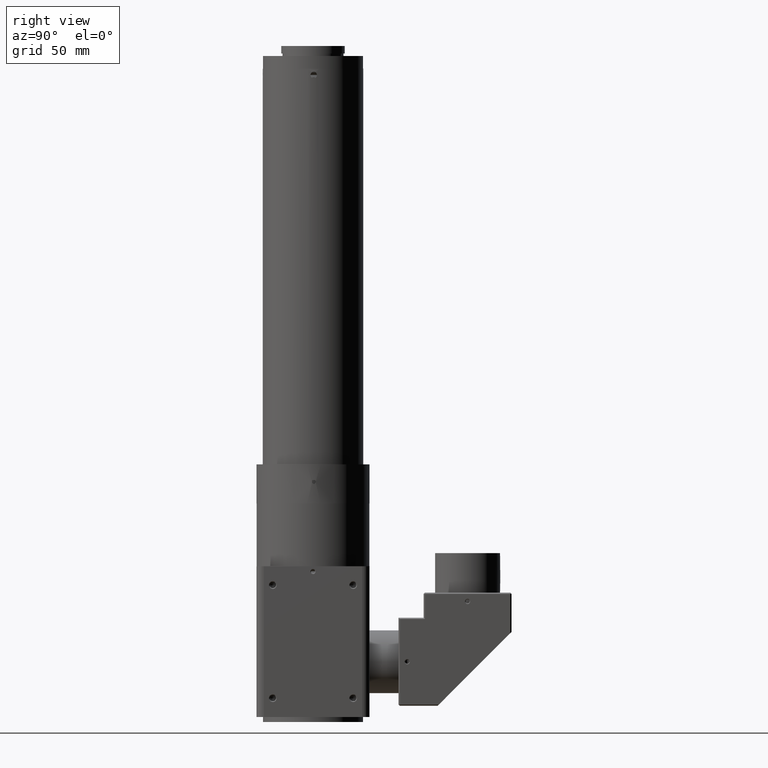
[diagram: clean part render]
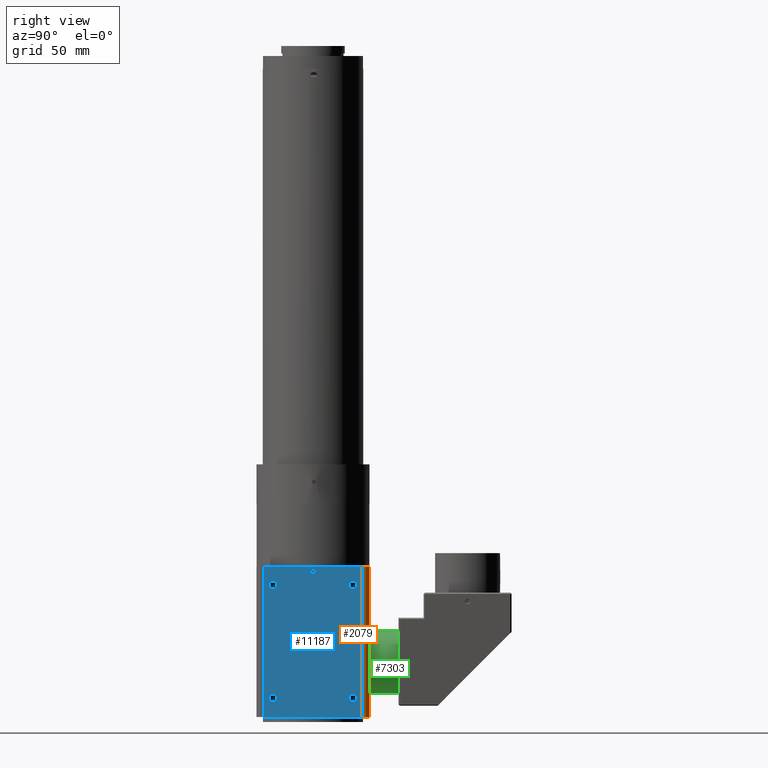
[diagram: same view with three faces highlighted in distinct colors, each labeled with its STEP entity id]
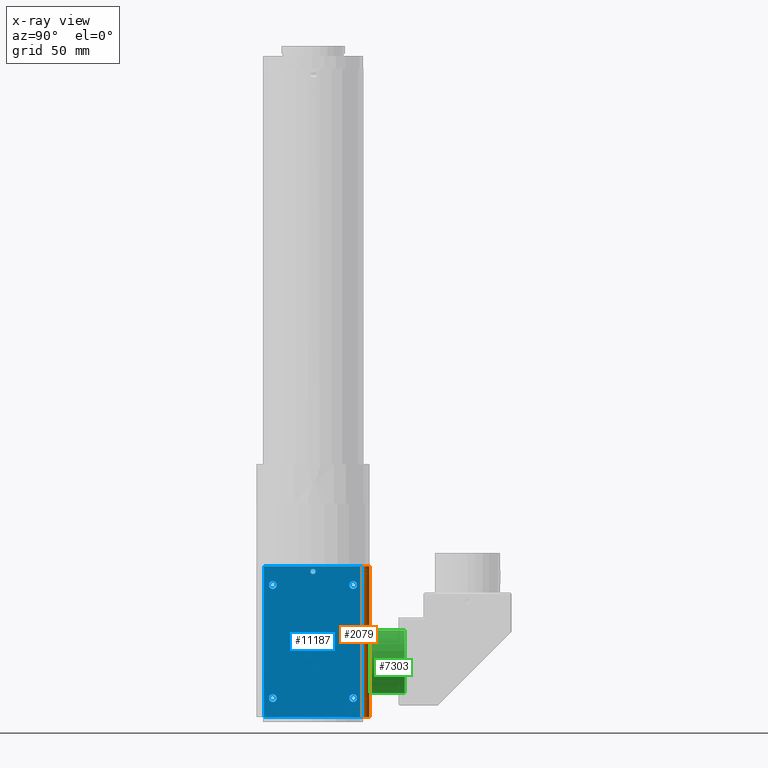
[diagram: x-ray of the same camera — body ghosted, the three highlighted faces saturated]
A machine part, right view with three faces highlighted in distinct colors.
The next image is the same camera in x-ray (body ghosted, the three faces saturated) — at least one of them is partly hidden behind the body in this view.
Their STEP definitions:

[orange] entity #2079 — the highlighted cylindrical surface (edge-blend (fillet) strip) has radius 3 mm, axis along (0, 0, -1).
#615 = CARTESIAN_POINT ( 'NONE',  ( 19.49999999999998579, 19.50000000000000355, 0.000000000000000000 ) ) ;
#764 = AXIS2_PLACEMENT_3D ( 'NONE', #615, #11208, #2173 ) ;
#855 = ORIENTED_EDGE ( 'NONE', *, *, #2610, .T. ) ;
#2079 = ADVANCED_FACE ( 'NONE', ( #3245 ), #6740, .T. ) ;
#2162 = EDGE_CURVE ( 'NONE', #8940, #2592, #11131, .T. ) ;
#2173 = DIRECTION ( 'NONE',  ( -1.000000000000000000, 1.156482317317871725E-15, 0.000000000000000000 ) ) ;
#2208 = VERTEX_POINT ( 'NONE', #6714 ) ;
#2592 = VERTEX_POINT ( 'NONE', #10692 ) ;
#2610 = EDGE_CURVE ( 'NONE', #7613, #2592, #7106, .T. ) ;
#2831 = DIRECTION ( 'NONE',  ( -0.000000000000000000, -0.000000000000000000, 1.000000000000000000 ) ) ;
#2977 = AXIS2_PLACEMENT_3D ( 'NONE', #9394, #7288, #7234 ) ;
#3016 = CARTESIAN_POINT ( 'NONE',  ( 19.49999999999997868, 22.50000000000000355, 0.000000000000000000 ) ) ;
#3245 = FACE_OUTER_BOUND ( 'NONE', #8731, .T. ) ;
#3722 = CIRCLE ( 'NONE', #764, 2.999999999999999112 ) ;
#3798 = DIRECTION ( 'NONE',  ( -1.000000000000000000, 1.156482317317871725E-15, 0.000000000000000000 ) ) ;
#4653 = AXIS2_PLACEMENT_3D ( 'NONE', #5218, #2831, #3798 ) ;
#4826 = DIRECTION ( 'NONE',  ( -0.000000000000000000, -0.000000000000000000, -1.000000000000000000 ) ) ;
#4885 = EDGE_CURVE ( 'NONE', #8940, #2208, #5694, .T. ) ;
#5168 = VECTOR ( 'NONE', #4826, 1000.000000000000000 ) ;
#5218 = CARTESIAN_POINT ( 'NONE',  ( 19.49999999999998579, 19.50000000000000355, 60.00000000000000000 ) ) ;
#5694 = LINE ( 'NONE', #6691, #5168 ) ;
#6202 = CARTESIAN_POINT ( 'NONE',  ( 22.50000000000000000, 19.50000000000000355, 60.00000000000000000 ) ) ;
#6691 = CARTESIAN_POINT ( 'NONE',  ( 22.49999999999999645, 19.50000000000000355, 60.00000000000000000 ) ) ;
#6714 = CARTESIAN_POINT ( 'NONE',  ( 22.50000000000000000, 19.50000000000000355, 0.000000000000000000 ) ) ;
#6740 = CYLINDRICAL_SURFACE ( 'NONE', #2977, 2.999999999999999112 ) ;
#6760 = ORIENTED_EDGE ( 'NONE', *, *, #2162, .F. ) ;
#7106 = LINE ( 'NONE', #8827, #8846 ) ;
#7234 = DIRECTION ( 'NONE',  ( -1.000000000000000000, 0.000000000000000000, 0.000000000000000000 ) ) ;
#7288 = DIRECTION ( 'NONE',  ( 0.000000000000000000, 0.000000000000000000, -1.000000000000000000 ) ) ;
#7613 = VERTEX_POINT ( 'NONE', #3016 ) ;
#7677 = ORIENTED_EDGE ( 'NONE', *, *, #4885, .T. ) ;
#8431 = EDGE_CURVE ( 'NONE', #2208, #7613, #3722, .T. ) ;
#8731 = EDGE_LOOP ( 'NONE', ( #9476, #855, #6760, #7677 ) ) ;
#8827 = CARTESIAN_POINT ( 'NONE',  ( 19.49999999999997158, 22.50000000000000355, 60.00000000000000000 ) ) ;
#8846 = VECTOR ( 'NONE', #10861, 1000.000000000000000 ) ;
#8940 = VERTEX_POINT ( 'NONE', #6202 ) ;
#9394 = CARTESIAN_POINT ( 'NONE',  ( 19.49999999999998579, 19.50000000000000355, 60.00000000000000000 ) ) ;
#9476 = ORIENTED_EDGE ( 'NONE', *, *, #8431, .T. ) ;
#10692 = CARTESIAN_POINT ( 'NONE',  ( 19.49999999999997868, 22.50000000000000355, 60.00000000000000000 ) ) ;
#10861 = DIRECTION ( 'NONE',  ( -0.000000000000000000, 0.000000000000000000, 1.000000000000000000 ) ) ;
#11131 = CIRCLE ( 'NONE', #4653, 2.999999999999999112 ) ;
#11208 = DIRECTION ( 'NONE',  ( -0.000000000000000000, -0.000000000000000000, 1.000000000000000000 ) ) ;

[blue] entity #11187 — the highlighted planar face has unit normal (-1, -0, 0).
#167 = DIRECTION ( 'NONE',  ( 1.000000000000000000, -0.000000000000000000, 0.000000000000000000 ) ) ;
#293 = ORIENTED_EDGE ( 'NONE', *, *, #10709, .F. ) ;
#356 = EDGE_CURVE ( 'NONE', #7692, #2208, #3054, .T. ) ;
#414 = DIRECTION ( 'NONE',  ( 1.000000000000000000, -0.000000000000000000, 0.000000000000000000 ) ) ;
#448 = ORIENTED_EDGE ( 'NONE', *, *, #10848, .F. ) ;
#583 = AXIS2_PLACEMENT_3D ( 'NONE', #10083, #4029, #8384 ) ;
#645 = EDGE_CURVE ( 'NONE', #9228, #9228, #736, .T. ) ;
#736 = CIRCLE ( 'NONE', #3317, 1.024999999970077624 ) ;
#1237 = FACE_BOUND ( 'NONE', #8778, .T. ) ;
#1361 = FACE_BOUND ( 'NONE', #2805, .T. ) ;
#1517 = CIRCLE ( 'NONE', #10593, 1.525000000015097612 ) ;
#1527 = EDGE_CURVE ( 'NONE', #7692, #6865, #3580, .T. ) ;
#1596 = LINE ( 'NONE', #8673, #2802 ) ;
#1713 = VERTEX_POINT ( 'NONE', #3389 ) ;
#1966 = ORIENTED_EDGE ( 'NONE', *, *, #645, .F. ) ;
#2091 = ORIENTED_EDGE ( 'NONE', *, *, #6651, .F. ) ;
#2104 = ORIENTED_EDGE ( 'NONE', *, *, #8227, .F. ) ;
#2122 = EDGE_LOOP ( 'NONE', ( #11121, #6068, #7463, #2104 ) ) ;
#2208 = VERTEX_POINT ( 'NONE', #6714 ) ;
#2235 = FACE_BOUND ( 'NONE', #6266, .T. ) ;
#2241 = EDGE_LOOP ( 'NONE', ( #2091 ) ) ;
#2283 = CARTESIAN_POINT ( 'NONE',  ( 22.49999999994051691, 1.024999999970156228, 57.89999999999999858 ) ) ;
#2293 = FACE_OUTER_BOUND ( 'NONE', #2122, .T. ) ;
#2357 = DIRECTION ( 'NONE',  ( 1.000000000000000000, 0.000000000000000000, 0.000000000000000000 ) ) ;
#2531 = DIRECTION ( 'NONE',  ( 0.000000000000000000, 1.000000000000000000, -0.000000000000000000 ) ) ;
#2673 = CARTESIAN_POINT ( 'NONE',  ( 22.49999999997272226, 15.99999999999998934, 7.499999999999992895 ) ) ;
#2802 = VECTOR ( 'NONE', #2531, 1000.000000000000000 ) ;
#2805 = EDGE_LOOP ( 'NONE', ( #293 ) ) ;
#3038 = DIRECTION ( 'NONE',  ( -1.000000000000000000, -1.541976423090495387E-16, 0.000000000000000000 ) ) ;
#3054 = LINE ( 'NONE', #4973, #9425 ) ;
#3317 = AXIS2_PLACEMENT_3D ( 'NONE', #9902, #9079, #10648 ) ;
#3389 = CARTESIAN_POINT ( 'NONE',  ( 22.49999999998863842, 15.99999999999998934, 50.97499999998489528 ) ) ;
#3580 = LINE ( 'NONE', #5326, #3709 ) ;
#3628 = DIRECTION ( 'NONE',  ( 0.000000000000000000, 0.000000000000000000, -1.000000000000000000 ) ) ;
#3709 = VECTOR ( 'NONE', #10442, 1000.000000000000000 ) ;
#3711 = DIRECTION ( 'NONE',  ( 0.000000000000000000, 0.000000000000000000, -1.000000000000000000 ) ) ;
#3843 = FACE_BOUND ( 'NONE', #2241, .T. ) ;
#4029 = DIRECTION ( 'NONE',  ( 1.000000000000000000, -0.000000000000000000, 0.000000000000000000 ) ) ;
#4220 = VERTEX_POINT ( 'NONE', #5149 ) ;
#4826 = DIRECTION ( 'NONE',  ( -0.000000000000000000, -0.000000000000000000, -1.000000000000000000 ) ) ;
#4885 = EDGE_CURVE ( 'NONE', #8940, #2208, #5694, .T. ) ;
#4973 = CARTESIAN_POINT ( 'NONE',  ( 22.50000000000000355, 0.000000000000000000, 0.000000000000000000 ) ) ;
#5011 = AXIS2_PLACEMENT_3D ( 'NONE', #10304, #2357, #5896 ) ;
#5149 = CARTESIAN_POINT ( 'NONE',  ( 22.49999999998863487, -16.00000000000001066, 50.97499999998490239 ) ) ;
#5168 = VECTOR ( 'NONE', #4826, 1000.000000000000000 ) ;
#5326 = CARTESIAN_POINT ( 'NONE',  ( 22.50000000000000355, -19.49999999999997158, 60.00000000000000000 ) ) ;
#5367 = AXIS2_PLACEMENT_3D ( 'NONE', #7176, #167, #3628 ) ;
#5417 = EDGE_LOOP ( 'NONE', ( #448 ) ) ;
#5542 = ORIENTED_EDGE ( 'NONE', *, *, #7500, .F. ) ;
#5694 = LINE ( 'NONE', #6691, #5168 ) ;
#5896 = DIRECTION ( 'NONE',  ( 0.000000000000000000, 0.000000000000000000, -1.000000000000000000 ) ) ;
#6068 = ORIENTED_EDGE ( 'NONE', *, *, #356, .T. ) ;
#6202 = CARTESIAN_POINT ( 'NONE',  ( 22.50000000000000000, 19.50000000000000355, 60.00000000000000000 ) ) ;
#6266 = EDGE_LOOP ( 'NONE', ( #5542 ) ) ;
#6376 = CARTESIAN_POINT ( 'NONE',  ( 22.49999999997272226, 15.99999999999998934, 5.974999999984895283 ) ) ;
#6488 = CIRCLE ( 'NONE', #5011, 1.524999999958253305 ) ;
#6596 = DIRECTION ( 'NONE',  ( 0.000000000000000000, 1.000000000000000000, -0.000000000000000000 ) ) ;
#6651 = EDGE_CURVE ( 'NONE', #4220, #4220, #7969, .T. ) ;
#6691 = CARTESIAN_POINT ( 'NONE',  ( 22.49999999999999645, 19.50000000000000355, 60.00000000000000000 ) ) ;
#6714 = CARTESIAN_POINT ( 'NONE',  ( 22.50000000000000000, 19.50000000000000355, 0.000000000000000000 ) ) ;
#6865 = VERTEX_POINT ( 'NONE', #10015 ) ;
#7043 = VERTEX_POINT ( 'NONE', #10584 ) ;
#7063 = AXIS2_PLACEMENT_3D ( 'NONE', #7390, #3038, #9415 ) ;
#7176 = CARTESIAN_POINT ( 'NONE',  ( 22.49999999998863842, 15.99999999999998934, 52.49999999999999289 ) ) ;
#7390 = CARTESIAN_POINT ( 'NONE',  ( 22.49999999999999645, 22.50000000000000355, 60.00000000000000000 ) ) ;
#7463 = ORIENTED_EDGE ( 'NONE', *, *, #4885, .F. ) ;
#7500 = EDGE_CURVE ( 'NONE', #9863, #9863, #1517, .T. ) ;
#7692 = VERTEX_POINT ( 'NONE', #7755 ) ;
#7755 = CARTESIAN_POINT ( 'NONE',  ( 22.50000000000000355, -19.49999999999997868, 0.000000000000000000 ) ) ;
#7969 = CIRCLE ( 'NONE', #583, 1.525000000015097612 ) ;
#8227 = EDGE_CURVE ( 'NONE', #6865, #8940, #1596, .T. ) ;
#8384 = DIRECTION ( 'NONE',  ( 0.000000000000000000, 0.000000000000000000, -1.000000000000000000 ) ) ;
#8673 = CARTESIAN_POINT ( 'NONE',  ( 22.50000000000000355, 0.000000000000000000, 60.00000000000000000 ) ) ;
#8778 = EDGE_LOOP ( 'NONE', ( #1966 ) ) ;
#8876 = CIRCLE ( 'NONE', #5367, 1.525000000015097612 ) ;
#8940 = VERTEX_POINT ( 'NONE', #6202 ) ;
#9079 = DIRECTION ( 'NONE',  ( 1.000000000000000000, 3.384826294558857638E-15, -0.000000000000000000 ) ) ;
#9228 = VERTEX_POINT ( 'NONE', #2283 ) ;
#9415 = DIRECTION ( 'NONE',  ( 1.541976423090495387E-16, -1.000000000000000000, 0.000000000000000000 ) ) ;
#9425 = VECTOR ( 'NONE', #6596, 1000.000000000000000 ) ;
#9863 = VERTEX_POINT ( 'NONE', #6376 ) ;
#9902 = CARTESIAN_POINT ( 'NONE',  ( 22.49999999994052047, 7.855833012376698069E-14, 57.89999999999999858 ) ) ;
#10015 = CARTESIAN_POINT ( 'NONE',  ( 22.50000000000000355, -19.49999999999997868, 60.00000000000000000 ) ) ;
#10069 = FACE_BOUND ( 'NONE', #5417, .T. ) ;
#10083 = CARTESIAN_POINT ( 'NONE',  ( 22.49999999998863487, -16.00000000000001066, 52.50000000000000000 ) ) ;
#10118 = PLANE ( 'NONE',  #7063 ) ;
#10304 = CARTESIAN_POINT ( 'NONE',  ( 22.49999999997271516, -16.00000000000001066, 7.499999999999997335 ) ) ;
#10442 = DIRECTION ( 'NONE',  ( 0.000000000000000000, 0.000000000000000000, 1.000000000000000000 ) ) ;
#10584 = CARTESIAN_POINT ( 'NONE',  ( 22.49999999997271516, -16.00000000000001066, 5.975000000041744030 ) ) ;
#10593 = AXIS2_PLACEMENT_3D ( 'NONE', #2673, #414, #3711 ) ;
#10648 = DIRECTION ( 'NONE',  ( -3.384826294687703473E-15, 1.000000000000000000, 0.000000000000000000 ) ) ;
#10709 = EDGE_CURVE ( 'NONE', #1713, #1713, #8876, .T. ) ;
#10848 = EDGE_CURVE ( 'NONE', #7043, #7043, #6488, .T. ) ;
#11121 = ORIENTED_EDGE ( 'NONE', *, *, #1527, .F. ) ;
#11187 = ADVANCED_FACE ( 'NONE', ( #2293, #1237, #1361, #10069, #2235, #3843 ), #10118, .F. ) ;

[green] entity #7303 — the highlighted cylindrical surface (bore or boss wall) has radius 12.5 mm, axis along (0, -1, 0).
#32 = CARTESIAN_POINT ( 'NONE',  ( -2.780404838475175389, 22.50000000000000711, 34.18685147748112740 ) ) ;
#203 = AXIS2_PLACEMENT_3D ( 'NONE', #11112, #571, #10132 ) ;
#480 = DIRECTION ( 'NONE',  ( -0.2224323870780139101, 0.000000000000000000, 0.9749481181984898104 ) ) ;
#571 = DIRECTION ( 'NONE',  ( -5.843577593930983453E-18, 1.000000000000000000, -1.333200084221340135E-18 ) ) ;
#651 = FACE_OUTER_BOUND ( 'NONE', #11173, .T. ) ;
#952 = CIRCLE ( 'NONE', #1880, 12.50000000000000711 ) ;
#1880 = AXIS2_PLACEMENT_3D ( 'NONE', #8555, #7050, #6126 ) ;
#2526 = EDGE_CURVE ( 'NONE', #10334, #10334, #952, .T. ) ;
#2786 = ORIENTED_EDGE ( 'NONE', *, *, #2526, .T. ) ;
#4886 = CYLINDRICAL_SURFACE ( 'NONE', #5009, 12.50000000000000711 ) ;
#5009 = AXIS2_PLACEMENT_3D ( 'NONE', #6793, #8411, #480 ) ;
#5165 = CARTESIAN_POINT ( 'NONE',  ( -2.780404838475175389, 36.50000000000002132, 34.18685147748112740 ) ) ;
#6117 = VERTEX_POINT ( 'NONE', #32 ) ;
#6126 = DIRECTION ( 'NONE',  ( -0.2224323870780139101, 0.000000000000000000, 0.9749481181984898104 ) ) ;
#6277 = EDGE_LOOP ( 'NONE', ( #10433 ) ) ;
#6685 = CIRCLE ( 'NONE', #203, 12.50000000000000711 ) ;
#6744 = FACE_OUTER_BOUND ( 'NONE', #6277, .T. ) ;
#6793 = CARTESIAN_POINT ( 'NONE',  ( 2.518308857583952255E-16, -1.572007956103696369, 22.00000000000000000 ) ) ;
#7050 = DIRECTION ( 'NONE',  ( 5.843577593930983453E-18, -1.000000000000000000, 1.333200084221340135E-18 ) ) ;
#7303 = ADVANCED_FACE ( 'NONE', ( #6744, #651 ), #4886, .T. ) ;
#8411 = DIRECTION ( 'NONE',  ( 5.843577593930983453E-18, -1.000000000000000000, 1.333200084221340135E-18 ) ) ;
#8555 = CARTESIAN_POINT ( 'NONE',  ( 2.935415311014537603E-17, 36.50000000000002132, 22.00000000000000000 ) ) ;
#10132 = DIRECTION ( 'NONE',  ( -0.2224323870780139101, 0.000000000000000000, 0.9749481181984898104 ) ) ;
#10334 = VERTEX_POINT ( 'NONE', #5165 ) ;
#10433 = ORIENTED_EDGE ( 'NONE', *, *, #10754, .T. ) ;
#10754 = EDGE_CURVE ( 'NONE', #6117, #6117, #6685, .T. ) ;
#11112 = CARTESIAN_POINT ( 'NONE',  ( 1.111642394251792122E-16, 22.50000000000000711, 22.00000000000000000 ) ) ;
#11173 = EDGE_LOOP ( 'NONE', ( #2786 ) ) ;